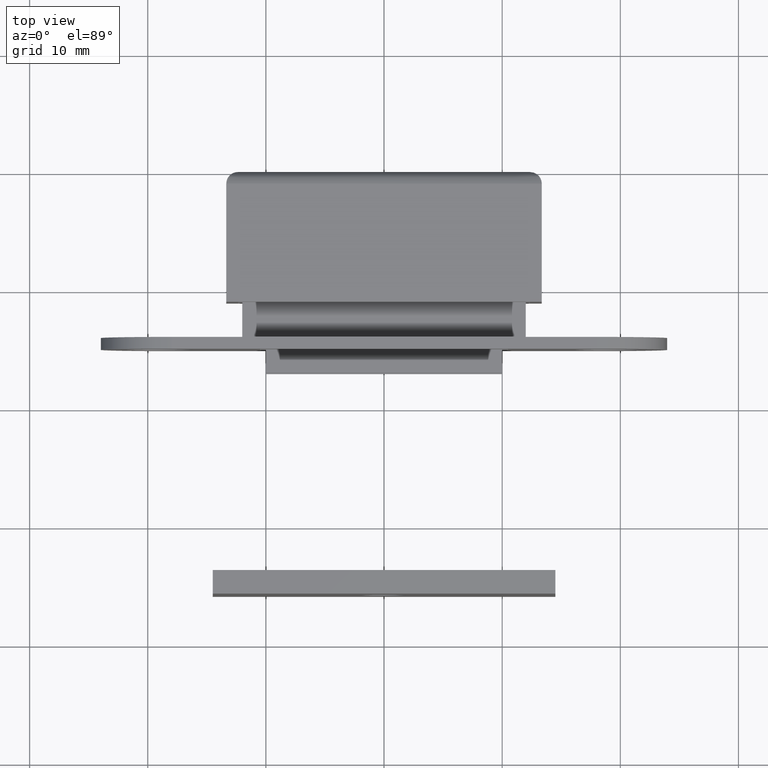
[diagram: clean part render]
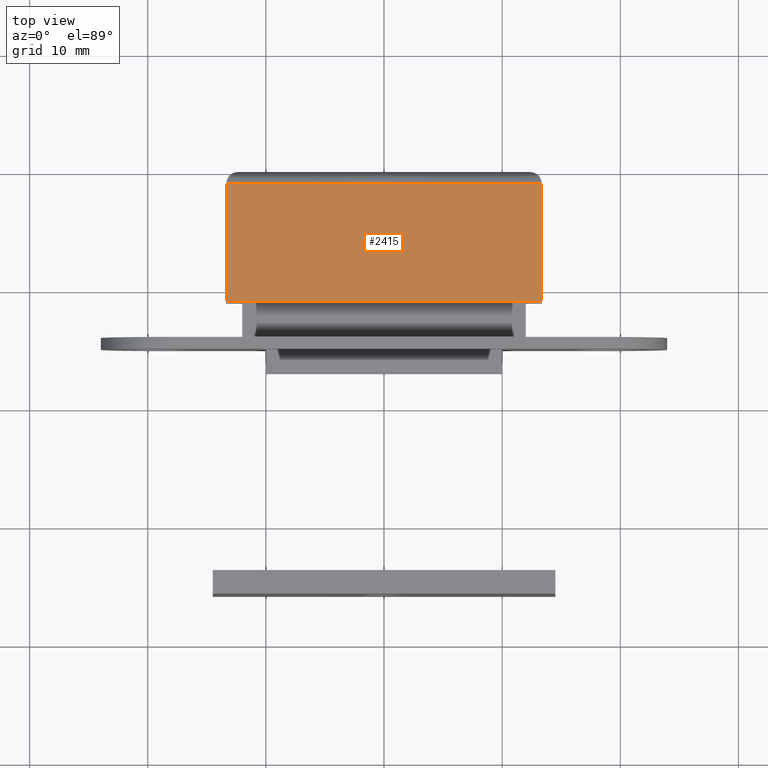
[diagram: same view with one face highlighted and labeled with its STEP entity id]
A machine part, top view. The second image highlights one B-rep face of the part: STEP entity #2415.
In plain terms, the highlighted face is a freeform B-spline surface patch.
Its self-contained STEP definition (entity closure, byte-faithful):
#2202=CARTESIAN_POINT('',(13.349998000000021,-1.0,4.349998000000000));
#2203=VERTEX_POINT('',#2202);
#2218=CARTESIAN_POINT('',(-13.349999000000000,-1.0,4.349998000000000));
#2219=VERTEX_POINT('',#2218);
#2233=CARTESIAN_POINT('',(13.349998000000021,-1.0,4.349998000000000));
#2234=CARTESIAN_POINT('',(-13.349999000000000,-1.0,4.349998000000000));
#2235=QUASI_UNIFORM_CURVE('',1,(#2233,#2234),.UNSPECIFIED.,.F.,.U.);
#2236=EDGE_CURVE('',#2203,#2219,#2235,.T.);
#2357=CARTESIAN_POINT('',(13.349998000000021,-10.999991999999800,4.349998000000000));
#2358=VERTEX_POINT('',#2357);
#2359=CARTESIAN_POINT('',(13.349998000000021,-10.999991999999800,4.349998000000000));
#2360=CARTESIAN_POINT('',(13.349998000000021,-1.0,4.349998000000000));
#2361=QUASI_UNIFORM_CURVE('',1,(#2359,#2360),.UNSPECIFIED.,.F.,.U.);
#2362=EDGE_CURVE('',#2358,#2203,#2361,.T.);
#2394=CARTESIAN_POINT('',(-14.683663798400231,-0.500500418981936,4.349998000000000));
#2395=CARTESIAN_POINT('',(-14.683663798400231,-11.499491849238551,4.349998000000000));
#2396=CARTESIAN_POINT('',(14.683663514549981,-0.500500418981936,4.349998000000000));
#2397=CARTESIAN_POINT('',(14.683663514549981,-11.499491849238551,4.349998000000000));
#2398=B_SPLINE_SURFACE_WITH_KNOTS('',1,1,((#2394,#2396),(#2395,#2397)),.UNSPECIFIED.,.F.,.F.,.U.,(2,2),(2,2),(0.0,10.998991430256620),(0.0,29.367327312950199),.UNSPECIFIED.);
#2399=ORIENTED_EDGE('',*,*,#2362,.T.);
#2400=ORIENTED_EDGE('',*,*,#2236,.T.);
#2401=CARTESIAN_POINT('',(-13.349999000000000,-10.999991999999800,4.349998000000000));
#2402=VERTEX_POINT('',#2401);
#2403=CARTESIAN_POINT('',(-13.349999000000000,-10.999991999999800,4.349998000000000));
#2404=CARTESIAN_POINT('',(-13.349999000000000,-1.0,4.349998000000000));
#2405=QUASI_UNIFORM_CURVE('',1,(#2403,#2404),.UNSPECIFIED.,.F.,.U.);
#2406=EDGE_CURVE('',#2402,#2219,#2405,.T.);
#2407=ORIENTED_EDGE('',*,*,#2406,.F.);
#2408=CARTESIAN_POINT('',(13.349998000000021,-10.999991999999800,4.349998000000000));
#2409=CARTESIAN_POINT('',(-13.349999000000000,-10.999991999999800,4.349998000000000));
#2410=QUASI_UNIFORM_CURVE('',1,(#2408,#2409),.UNSPECIFIED.,.F.,.U.);
#2411=EDGE_CURVE('',#2358,#2402,#2410,.T.);
#2412=ORIENTED_EDGE('',*,*,#2411,.F.);
#2413=EDGE_LOOP('',(#2399,#2400,#2407,#2412));
#2414=FACE_OUTER_BOUND('',#2413,.T.);
#2415=ADVANCED_FACE('',(#2414),#2398,.T.);